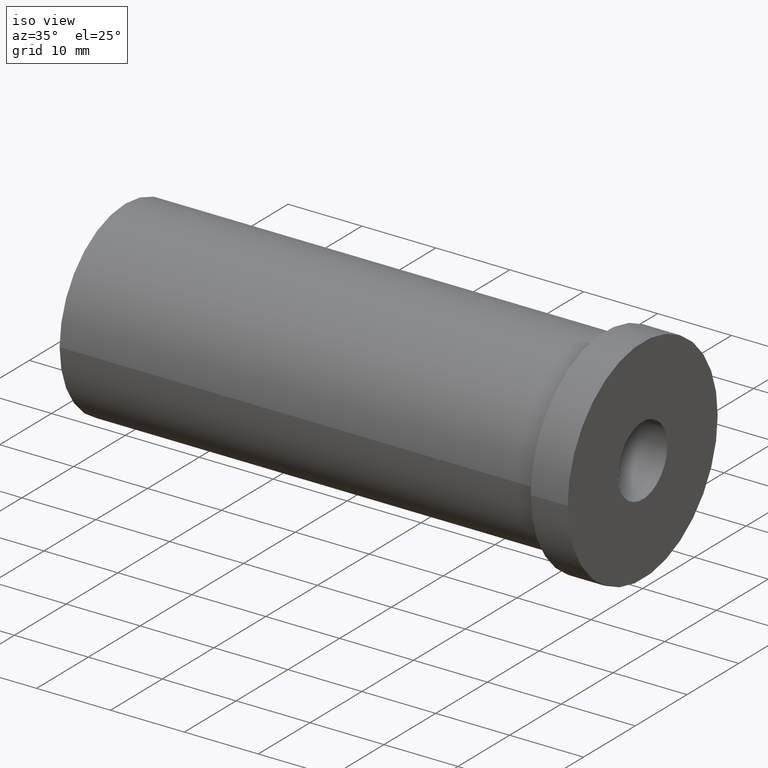
[diagram: clean part render]
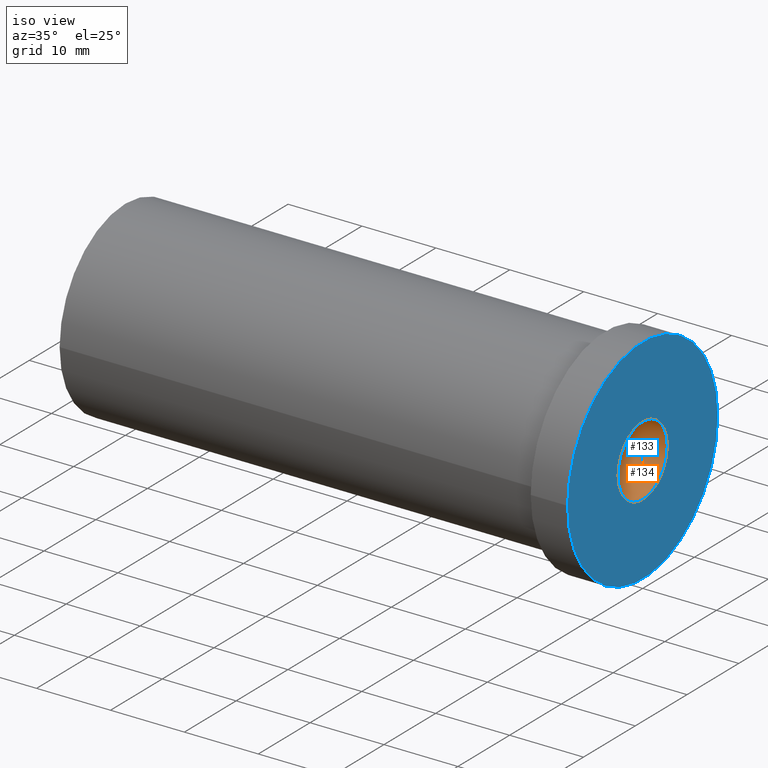
[diagram: same view with the hole feature highlighted: cylindrical wall and planar end face, labeled with their STEP entity ids]
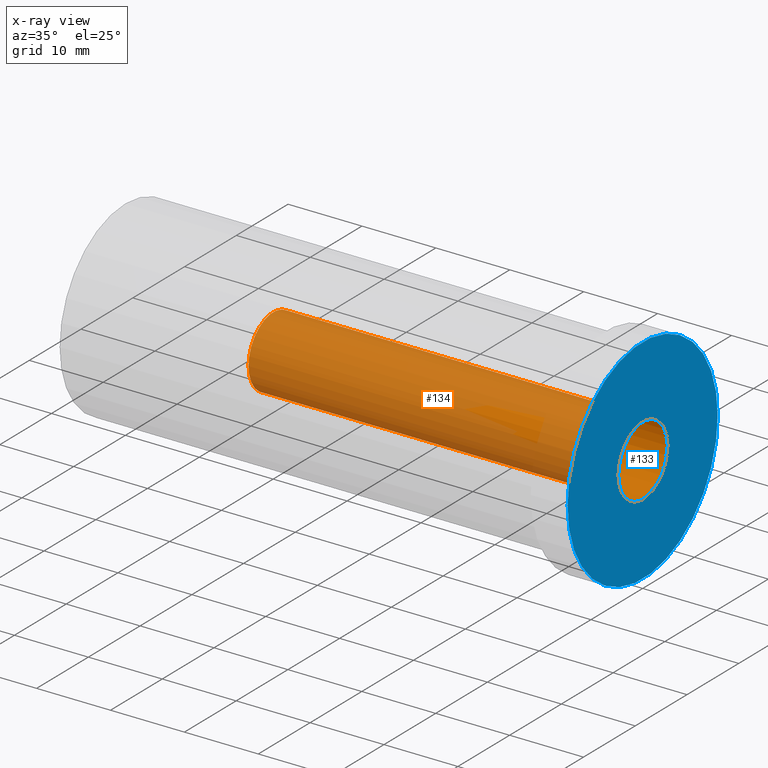
[diagram: x-ray of the same camera — body ghosted, the hole faces saturated]
A machine part, iso view. The highlighted faces form one hole feature of diameter 9.525 mm: the cylindrical wall (entity #134, orange) and its adjacent planar end face (entity #133, blue) — they share a circular edge in the B-rep.
The next image is the same camera in x-ray (body ghosted, the hole faces saturated) — the bore reads through the body.
Wall:
#29=FACE_OUTER_BOUND('',#41,.T.);
#41=EDGE_LOOP('',(#107,#108,#109,#110));
#52=LINE('',#251,#57);
#57=VECTOR('',#209,4.7625);
#65=CIRCLE('',#172,4.76250000000001);
#66=CIRCLE('',#174,4.76249999999998);
#75=VERTEX_POINT('',#247);
#76=VERTEX_POINT('',#250);
#87=EDGE_CURVE('',#75,#75,#65,.T.);
#88=EDGE_CURVE('',#75,#76,#52,.T.);
#89=EDGE_CURVE('',#76,#76,#66,.T.);
#107=ORIENTED_EDGE('',*,*,#87,.T.);
#108=ORIENTED_EDGE('',*,*,#88,.T.);
#109=ORIENTED_EDGE('',*,*,#89,.F.);
#110=ORIENTED_EDGE('',*,*,#88,.F.);
#127=CYLINDRICAL_SURFACE('',#173,4.7625);
#134=ADVANCED_FACE('',(#29),#127,.F.);
#172=AXIS2_PLACEMENT_3D('',#248,#205,#206);
#173=AXIS2_PLACEMENT_3D('',#249,#207,#208);
#174=AXIS2_PLACEMENT_3D('',#252,#210,#211);
#205=DIRECTION('center_axis',(1.,0.,0.));
#206=DIRECTION('ref_axis',(0.,0.,-1.));
#207=DIRECTION('center_axis',(1.,0.,0.));
#208=DIRECTION('ref_axis',(0.,1.,0.));
#209=DIRECTION('',(-1.,0.,0.));
#210=DIRECTION('center_axis',(1.,0.,0.));
#211=DIRECTION('ref_axis',(0.,0.,-1.));
#247=CARTESIAN_POINT('',(8.88178419700125E-15,-4.7625,-5.83238038093927E-16));
#248=CARTESIAN_POINT('Origin',(8.88178419700125E-15,0.,0.));
#249=CARTESIAN_POINT('Origin',(-25.,0.,0.));
#250=CARTESIAN_POINT('',(-50.,-4.7625,-5.83238038093927E-16));
#251=CARTESIAN_POINT('',(-25.,-4.7625,-5.83238038093927E-16));
#252=CARTESIAN_POINT('Origin',(-50.,0.,0.));
End face:
#16=FACE_BOUND('',#40,.T.);
#21=PLANE('',#171);
#28=FACE_OUTER_BOUND('',#39,.T.);
#39=EDGE_LOOP('',(#105));
#40=EDGE_LOOP('',(#106));
#64=CIRCLE('',#170,14.5);
#65=CIRCLE('',#172,4.76250000000001);
#74=VERTEX_POINT('',#243);
#75=VERTEX_POINT('',#247);
#85=EDGE_CURVE('',#74,#74,#64,.T.);
#87=EDGE_CURVE('',#75,#75,#65,.T.);
#105=ORIENTED_EDGE('',*,*,#85,.T.);
#106=ORIENTED_EDGE('',*,*,#87,.F.);
#133=ADVANCED_FACE('',(#28,#16),#21,.T.);
#170=AXIS2_PLACEMENT_3D('',#244,#200,#201);
#171=AXIS2_PLACEMENT_3D('',#246,#203,#204);
#172=AXIS2_PLACEMENT_3D('',#248,#205,#206);
#200=DIRECTION('center_axis',(1.,0.,0.));
#201=DIRECTION('ref_axis',(0.,0.,-1.));
#203=DIRECTION('center_axis',(1.,0.,0.));
#204=DIRECTION('ref_axis',(0.,0.,-1.));
#205=DIRECTION('center_axis',(1.,0.,0.));
#206=DIRECTION('ref_axis',(0.,0.,-1.));
#243=CARTESIAN_POINT('',(1.77635683940025E-14,-14.5,-1.77573785876366E-15));
#244=CARTESIAN_POINT('Origin',(1.77635683940025E-14,0.,0.));
#246=CARTESIAN_POINT('Origin',(6.66133814775094E-15,4.76250000000001,0.));
#247=CARTESIAN_POINT('',(8.88178419700125E-15,-4.7625,-5.83238038093927E-16));
#248=CARTESIAN_POINT('Origin',(8.88178419700125E-15,0.,0.));